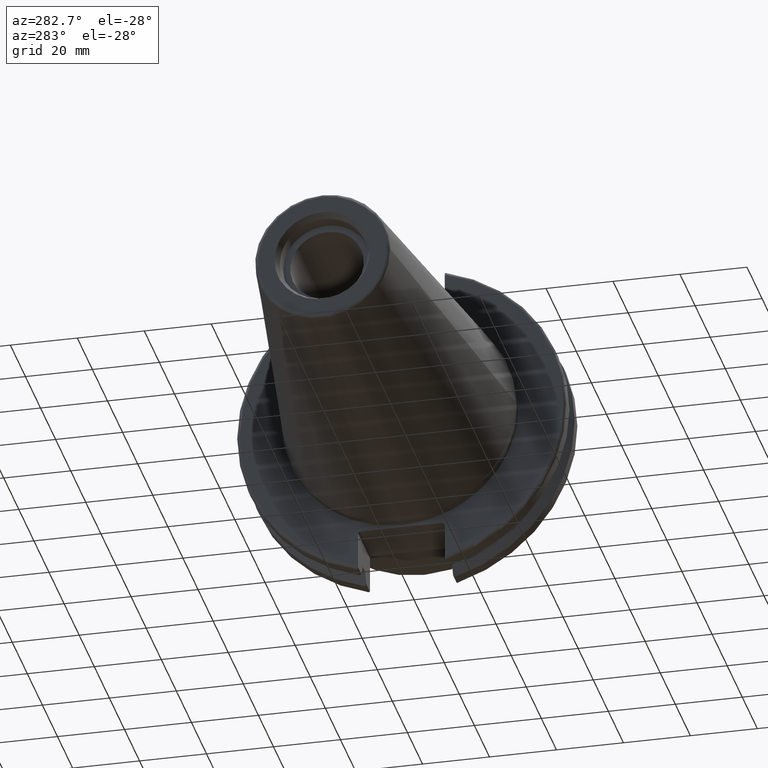
[diagram: clean part render]
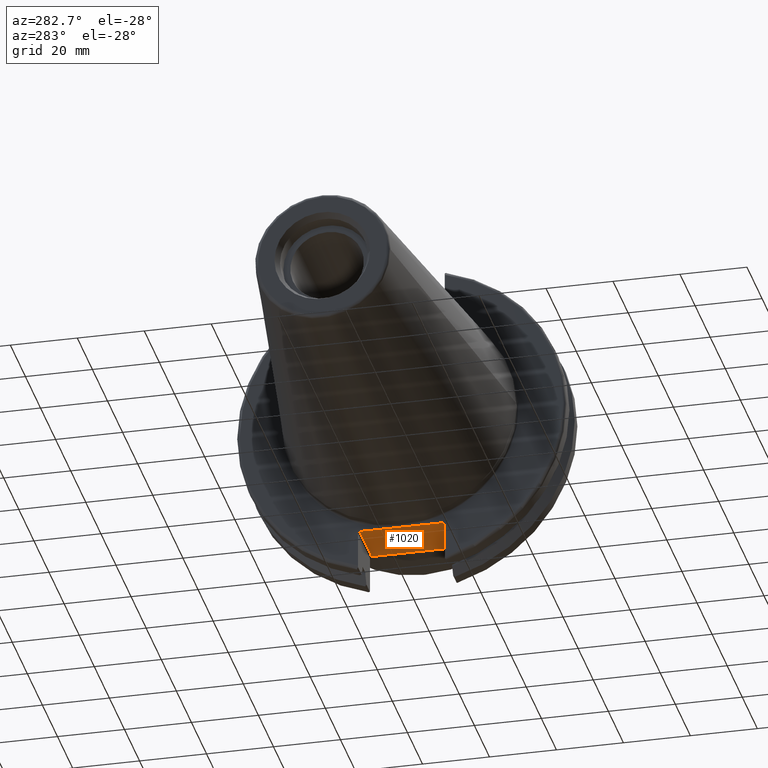
[diagram: same view with one face highlighted and labeled with its STEP entity id]
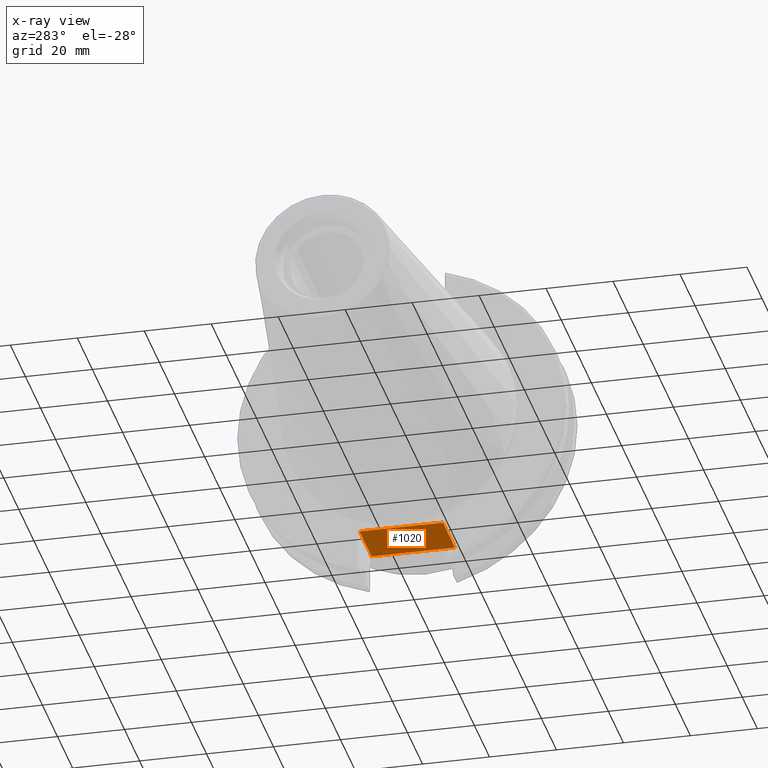
[diagram: x-ray of the same camera — body ghosted, the highlighted face saturated]
A machine part, auxiliary view. The second image highlights one B-rep face of the part: STEP entity #1020.
The next image is the same camera in x-ray: the body ghosted, the highlighted face saturated — about 0% of this face is hidden behind the body in this view.
In plain terms, the highlighted planar face has unit normal (0, 0, 1).
Its self-contained STEP definition (entity closure, byte-faithful):
#77=PLANE('',#1140);
#132=FACE_OUTER_BOUND('',#196,.T.);
#196=EDGE_LOOP('',(#847,#848,#849,#850));
#240=LINE('',#1558,#309);
#259=LINE('',#1655,#328);
#277=LINE('',#1826,#346);
#278=LINE('',#1828,#347);
#309=VECTOR('',#1271,10.);
#328=VECTOR('',#1308,10.);
#346=VECTOR('',#1372,10.);
#347=VECTOR('',#1375,10.);
#444=VERTEX_POINT('',#1555);
#445=VERTEX_POINT('',#1557);
#470=VERTEX_POINT('',#1652);
#471=VERTEX_POINT('',#1654);
#554=EDGE_CURVE('',#444,#445,#240,.T.);
#585=EDGE_CURVE('',#470,#471,#259,.T.);
#631=EDGE_CURVE('',#471,#444,#277,.T.);
#632=EDGE_CURVE('',#445,#470,#278,.T.);
#847=ORIENTED_EDGE('',*,*,#631,.F.);
#848=ORIENTED_EDGE('',*,*,#585,.F.);
#849=ORIENTED_EDGE('',*,*,#632,.F.);
#850=ORIENTED_EDGE('',*,*,#554,.F.);
#1020=ADVANCED_FACE('',(#132),#77,.F.);
#1140=AXIS2_PLACEMENT_3D('',#1827,#1373,#1374);
#1271=DIRECTION('',(0.,-1.,0.));
#1308=DIRECTION('',(0.,1.,0.));
#1372=DIRECTION('',(-1.,2.63163976207444E-16,0.));
#1373=DIRECTION('center_axis',(0.,0.,1.));
#1374=DIRECTION('ref_axis',(1.,0.,0.));
#1375=DIRECTION('',(1.,2.63163976207445E-16,0.));
#1555=CARTESIAN_POINT('',(3.175,12.45,-35.306));
#1557=CARTESIAN_POINT('',(3.175,-12.45,-35.306));
#1558=CARTESIAN_POINT('',(3.175,24.60625,-35.306));
#1652=CARTESIAN_POINT('',(19.05,-12.45,-35.306));
#1654=CARTESIAN_POINT('',(19.05,12.45,-35.306));
#1655=CARTESIAN_POINT('',(19.05,-3.33066907387547E-15,-35.306));
#1826=CARTESIAN_POINT('',(10.63125,12.45,-35.306));
#1827=CARTESIAN_POINT('Origin',(18.0875,-6.66133814775094E-15,-35.306));
#1828=CARTESIAN_POINT('',(19.06875,-12.45,-35.306));